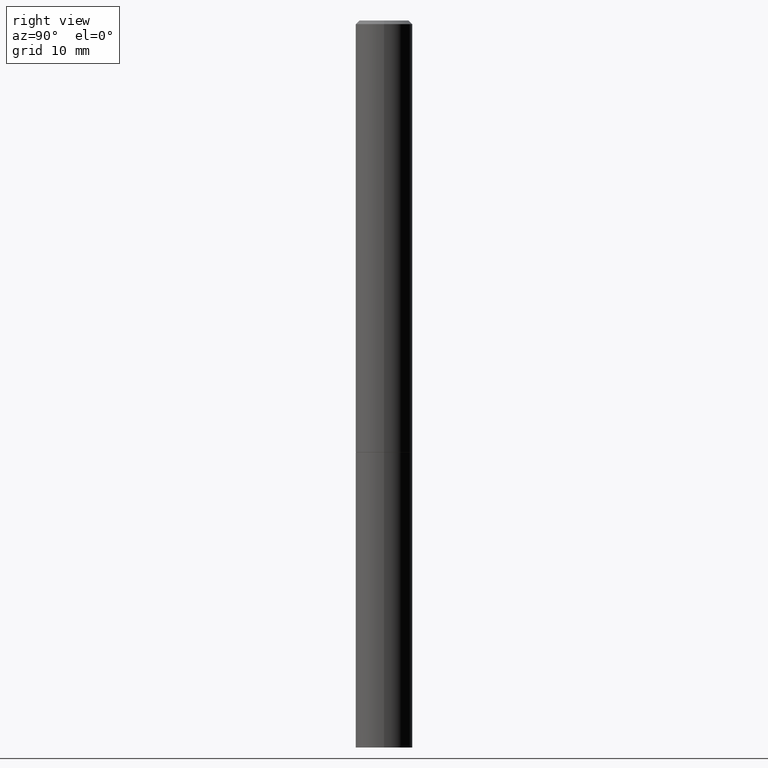
[diagram: clean part render]
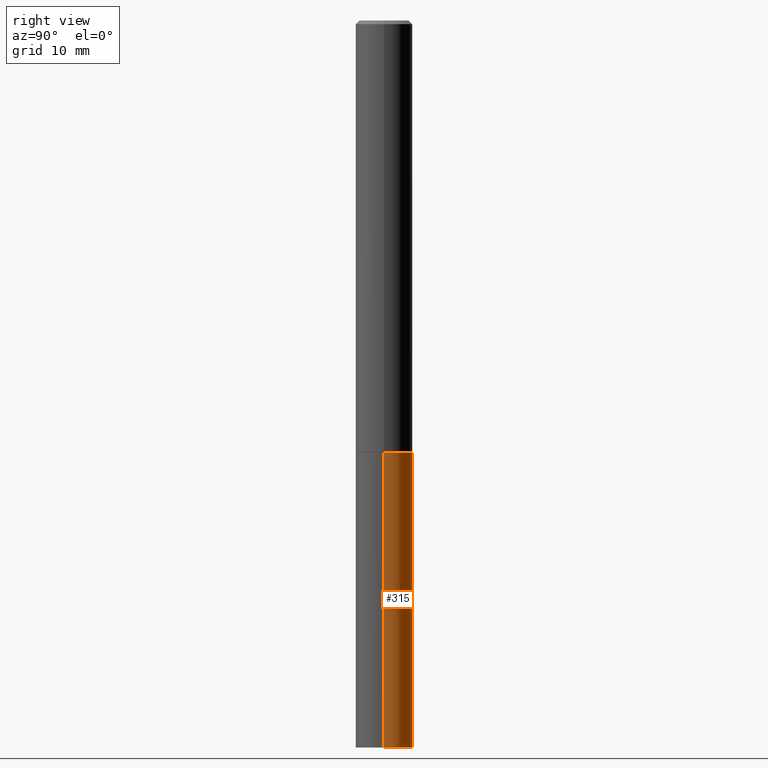
[diagram: same view with one face highlighted and labeled with its STEP entity id]
A machine part, right view. The second image highlights one B-rep face of the part: STEP entity #315.
In plain terms, the highlighted cylindrical surface (edge-blend (fillet) strip) has radius 3.9688 mm, axis along (-0, 0, 1).
Its self-contained STEP definition (entity closure, byte-faithful):
#10 = CARTESIAN_POINT ( 'NONE',  ( 5.807988414689699417E-29, -8.292268179752470118E-15, -2.375000000000000000 ) ) ;
#32 = CARTESIAN_POINT ( 'NONE',  ( 0.1562500000000000000, -1.091087918388479174E-15, 7.619026212181150377E-30 ) ) ;
#37 = ORIENTED_EDGE ( 'NONE', *, *, #322, .F. ) ;
#48 = EDGE_LOOP ( 'NONE', ( #108, #102, #37, #242 ) ) ;
#52 = DIRECTION ( 'NONE',  ( -2.445468806185136877E-29, 3.491481338843145188E-15, 1.000000000000000000 ) ) ;
#57 = LINE ( 'NONE', #32, #298 ) ;
#60 = DIRECTION ( 'NONE',  ( 1.000000000000000000, -6.982962677686266711E-15, 4.876176775795936353E-29 ) ) ;
#62 = VERTEX_POINT ( 'NONE', #215 ) ;
#63 = AXIS2_PLACEMENT_3D ( 'NONE', #175, #347, #60 ) ;
#64 = CYLINDRICAL_SURFACE ( 'NONE', #63, 0.1562500000000000000 ) ;
#66 = CIRCLE ( 'NONE', #101, 0.1562500000000000000 ) ;
#67 = CARTESIAN_POINT ( 'NONE',  ( -0.1562500000000000000, -1.001887374293736968E-14, -2.375000000000000000 ) ) ;
#101 = AXIS2_PLACEMENT_3D ( 'NONE', #229, #323, #140 ) ;
#102 = ORIENTED_EDGE ( 'NONE', *, *, #291, .T. ) ;
#108 = ORIENTED_EDGE ( 'NONE', *, *, #109, .T. ) ;
#109 = EDGE_CURVE ( 'NONE', #245, #62, #66, .T. ) ;
#114 = AXIS2_PLACEMENT_3D ( 'NONE', #10, #147, #123 ) ;
#121 = CARTESIAN_POINT ( 'NONE',  ( -0.1562500000000000000, 1.110223024625156540E-15, -7.685836078523291160E-30 ) ) ;
#123 = DIRECTION ( 'NONE',  ( 1.000000000000000000, -6.982962677686262766E-15, 0.000000000000000000 ) ) ;
#136 = VECTOR ( 'NONE', #202, 39.37007874015748143 ) ;
#140 = DIRECTION ( 'NONE',  ( 1.000000000000000000, -6.982962677686262766E-15, 0.000000000000000000 ) ) ;
#143 = LINE ( 'NONE', #121, #136 ) ;
#146 = CIRCLE ( 'NONE', #114, 0.1562500000000000000 ) ;
#147 = DIRECTION ( 'NONE',  ( -2.445468806185136597E-29, 3.491481338843145583E-15, 1.000000000000000000 ) ) ;
#175 = CARTESIAN_POINT ( 'NONE',  ( 0.000000000000000000, 0.000000000000000000, 0.000000000000000000 ) ) ;
#181 = EDGE_CURVE ( 'NONE', #245, #358, #57, .T. ) ;
#202 = DIRECTION ( 'NONE',  ( -2.445468806185136877E-29, 3.491481338843145188E-15, 1.000000000000000000 ) ) ;
#215 = CARTESIAN_POINT ( 'NONE',  ( -0.1562500000000000000, -1.001887374293736968E-14, -4.000000000000000000 ) ) ;
#229 = CARTESIAN_POINT ( 'NONE',  ( 9.781875224740546387E-29, -1.396592535537258233E-14, -4.000000000000000000 ) ) ;
#242 = ORIENTED_EDGE ( 'NONE', *, *, #181, .F. ) ;
#245 = VERTEX_POINT ( 'NONE', #284 ) ;
#284 = CARTESIAN_POINT ( 'NONE',  ( 0.1562500000000000000, -1.505701327376106229E-14, -4.000000000000000000 ) ) ;
#291 = EDGE_CURVE ( 'NONE', #62, #324, #143, .T. ) ;
#295 = CARTESIAN_POINT ( 'NONE',  ( 0.1562500000000000000, -9.383356098140948502E-15, -2.375000000000000000 ) ) ;
#298 = VECTOR ( 'NONE', #52, 39.37007874015748143 ) ;
#302 = FACE_OUTER_BOUND ( 'NONE', #48, .T. ) ;
#315 = ADVANCED_FACE ( 'NONE', ( #302 ), #64, .T. ) ;
#322 = EDGE_CURVE ( 'NONE', #358, #324, #146, .T. ) ;
#323 = DIRECTION ( 'NONE',  ( -2.445468806185136597E-29, 3.491481338843145583E-15, 1.000000000000000000 ) ) ;
#324 = VERTEX_POINT ( 'NONE', #67 ) ;
#347 = DIRECTION ( 'NONE',  ( -2.445468806185136597E-29, 3.491481338843145583E-15, 1.000000000000000000 ) ) ;
#358 = VERTEX_POINT ( 'NONE', #295 ) ;